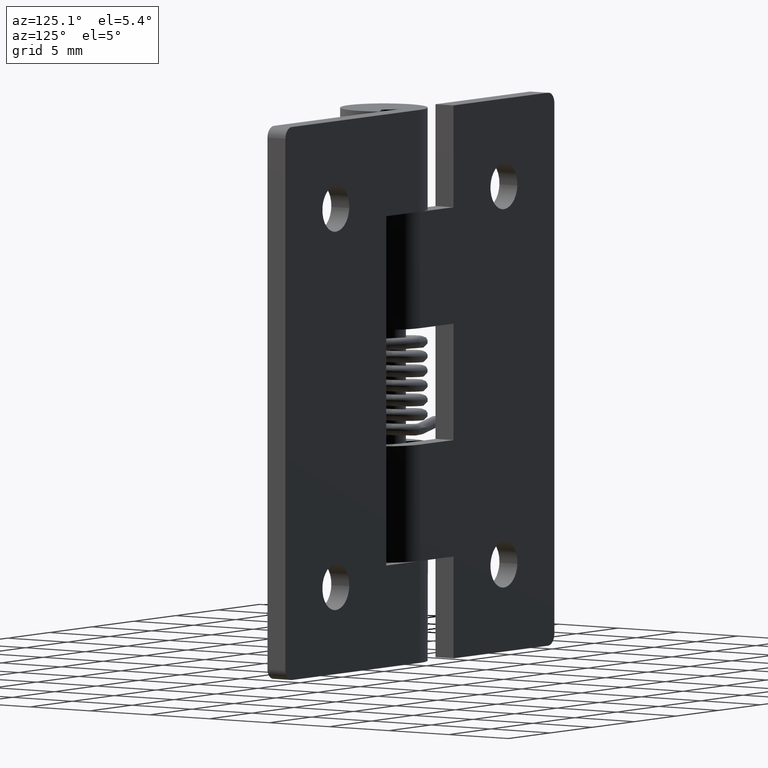
[diagram: clean part render]
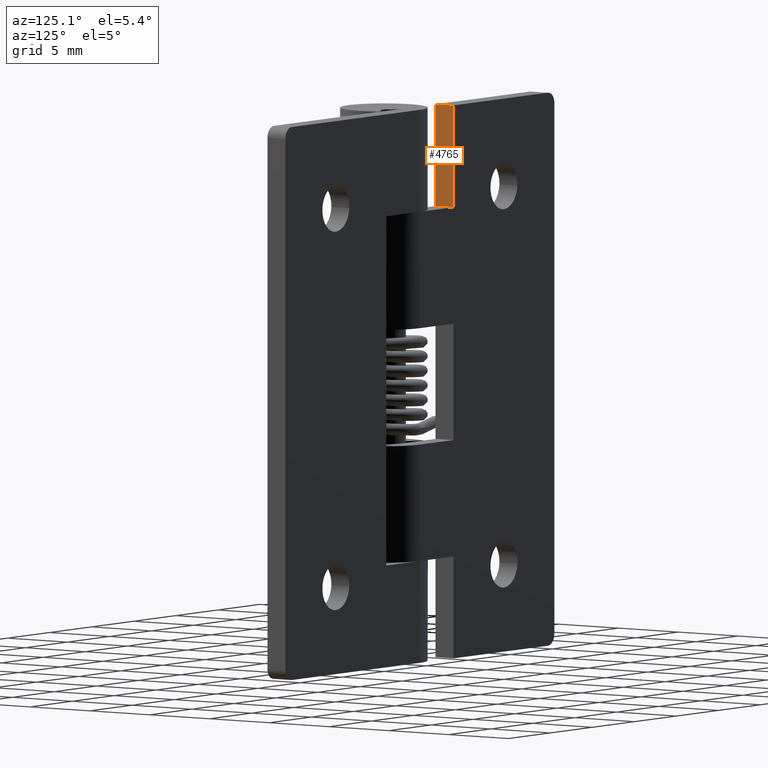
[diagram: same view with one face highlighted and labeled with its STEP entity id]
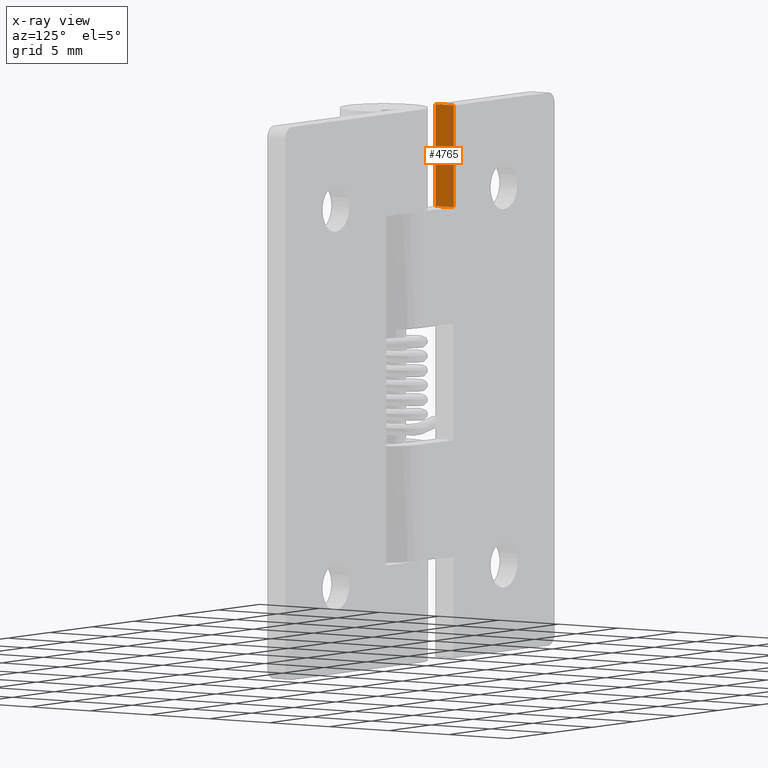
[diagram: x-ray of the same camera — body ghosted, the highlighted face saturated]
A machine part, auxiliary view. The second image highlights one B-rep face of the part: STEP entity #4765.
The next image is the same camera in x-ray: the body ghosted, the highlighted face saturated — about 0% of this face is hidden behind the body in this view.
In plain terms, the highlighted face is a freeform B-spline surface patch.
Its self-contained STEP definition (entity closure, byte-faithful):
#4730=CARTESIAN_POINT('',(-4.0,1.425075002907234,38.349649986432652));
#4731=CARTESIAN_POINT('',(-4.0,1.425075002907234,30.650349825812729));
#4732=CARTESIAN_POINT('',(-4.0,3.074925037325847,38.349649986432652));
#4733=CARTESIAN_POINT('',(-4.0,3.074925037325847,30.650349825812729));
#4734=B_SPLINE_SURFACE_WITH_KNOTS('',1,1,((#4730,#4732),(#4731,#4733)),.UNSPECIFIED.,.F.,.F.,.U.,(2,2),(2,2),(0.0,7.699300160619920),(0.041708334948495,0.958291687403247),.UNSPECIFIED.);
#4735=CARTESIAN_POINT('',(-4.0,1.499999999999946,38.0));
#4736=VERTEX_POINT('',#4735);
#4737=CARTESIAN_POINT('',(-4.0,1.499999999999946,31.0));
#4738=VERTEX_POINT('',#4737);
#4739=CARTESIAN_POINT('',(-4.0,1.499999999999946,38.0));
#4740=CARTESIAN_POINT('',(-4.0,1.499999999999946,31.0));
#4741=QUASI_UNIFORM_CURVE('',1,(#4739,#4740),.UNSPECIFIED.,.F.,.U.);
#4742=EDGE_CURVE('',#4736,#4738,#4741,.T.);
#4743=ORIENTED_EDGE('',*,*,#4742,.T.);
#4744=CARTESIAN_POINT('',(-4.0,3.0,31.0));
#4745=VERTEX_POINT('',#4744);
#4746=CARTESIAN_POINT('',(-4.0,3.0,31.0));
#4747=CARTESIAN_POINT('',(-4.0,1.499999999999946,31.0));
#4748=QUASI_UNIFORM_CURVE('',1,(#4746,#4747),.UNSPECIFIED.,.F.,.U.);
#4749=EDGE_CURVE('',#4745,#4738,#4748,.T.);
#4750=ORIENTED_EDGE('',*,*,#4749,.F.);
#4751=CARTESIAN_POINT('',(-4.0,3.0,38.0));
#4752=VERTEX_POINT('',#4751);
#4753=CARTESIAN_POINT('',(-4.0,3.0,31.0));
#4754=CARTESIAN_POINT('',(-4.0,3.0,38.0));
#4755=QUASI_UNIFORM_CURVE('',1,(#4753,#4754),.UNSPECIFIED.,.F.,.U.);
#4756=EDGE_CURVE('',#4745,#4752,#4755,.T.);
#4757=ORIENTED_EDGE('',*,*,#4756,.T.);
#4758=CARTESIAN_POINT('',(-4.0,3.0,38.0));
#4759=CARTESIAN_POINT('',(-4.0,1.499999999999946,38.0));
#4760=QUASI_UNIFORM_CURVE('',1,(#4758,#4759),.UNSPECIFIED.,.F.,.U.);
#4761=EDGE_CURVE('',#4752,#4736,#4760,.T.);
#4762=ORIENTED_EDGE('',*,*,#4761,.T.);
#4763=EDGE_LOOP('',(#4743,#4750,#4757,#4762));
#4764=FACE_OUTER_BOUND('',#4763,.T.);
#4765=ADVANCED_FACE('',(#4764),#4734,.T.);